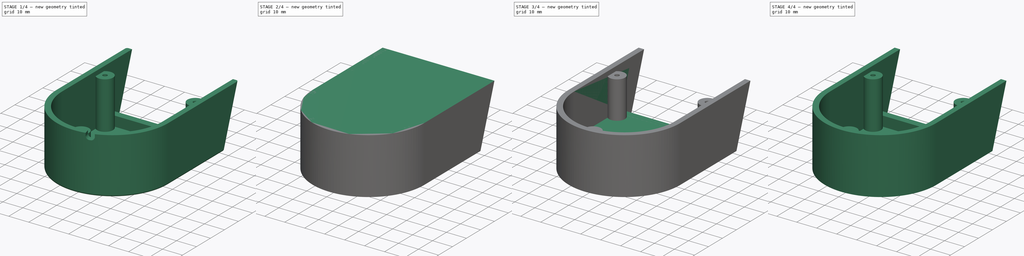
[diagram: build sequence overview — one tinted view per stage of 4, left to right]
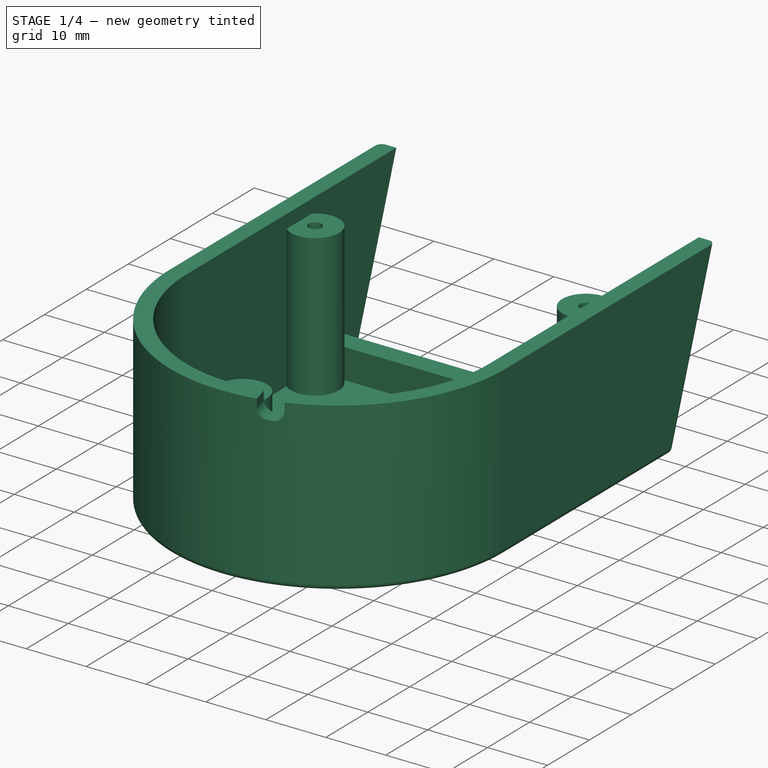
[diagram: stage 1 of 4 — iso view after this stage's code; geometry added in this stage tinted green]
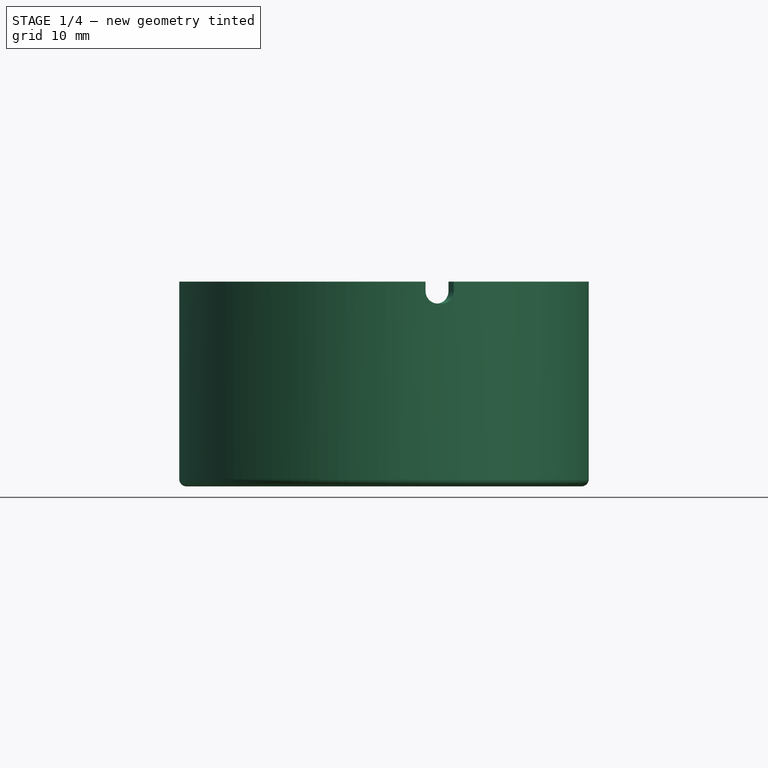
[diagram: stage 1 of 4 — front view after this stage's code; geometry added in this stage tinted green]
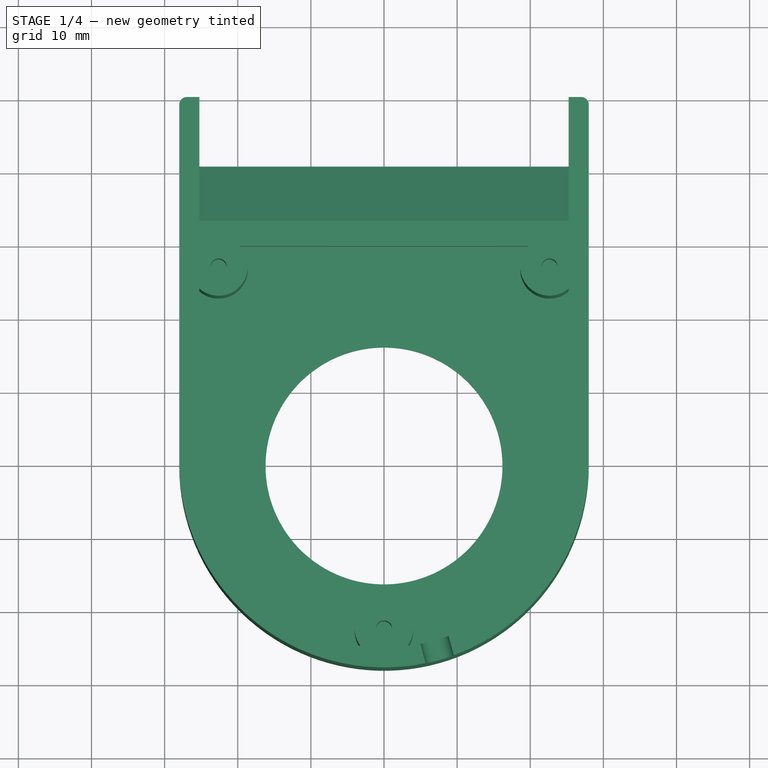
[diagram: stage 1 of 4 — top view after this stage's code; geometry added in this stage tinted green]
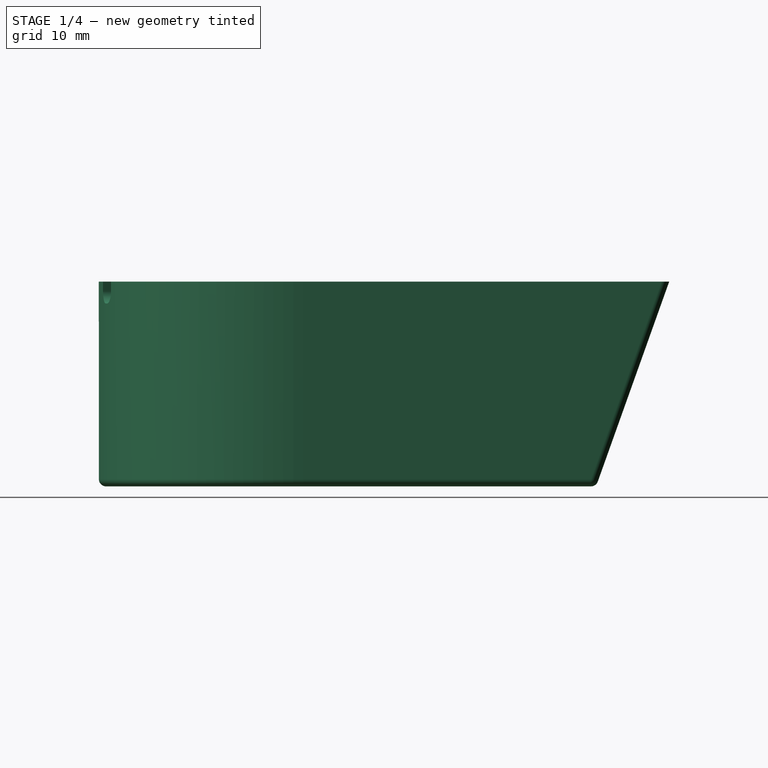
[diagram: stage 1 of 4 — right view after this stage's code; geometry added in this stage tinted green]
FCSTD DOCUMENT  (FreeCAD 0.16R6704 (Git))
Label: case-upper
License: All rights reserved
LicenseURL: http://en.wikipedia.org/wiki/All_rights_reserved
objects: Sketcher::SketchObject×9, PartDesign::Pocket×7, PartDesign::Pad×2, PartDesign::Fillet×2, Part::Feature×1
note: 30 computed .brp shape members not serialized (recipe doc carries the construction recipe); baked Part::Feature solids carry a one-line shape summary decoded from their .brp

FEATURE [Part::Feature] Pocket005001  label="Pocket006"
  shape: bbox 56 x 78 x 28 mm, 31 faces (baked)
FEATURE [Sketcher::SketchObject] Sketch010  label="Wire"
  Placement = pos=(0,0,28) rot=(0,0,1;0rad)
  Support = -> Pocket005001 [Face5]
  sketch-geometry (4):
    g0: LineSegment StartX=9.91662 StartY=-27.7603 StartZ=0 EndX=8.3637 EndY=-21.9647 EndZ=0
    g1: LineSegment StartX=4.5 StartY=-23 StartZ=0 EndX=6.05291 EndY=-28.7956 EndZ=0
    g2: LineSegment StartX=6.05291 StartY=-28.7956 StartZ=0 EndX=9.91662 EndY=-27.7603 EndZ=0
    g3: LineSegment StartX=8.3637 StartY=-21.9647 StartZ=0 EndX=4.5 EndY=-23 EndZ=0
  constraints (12):
    c: Coincident(g1,g2)
    c: Coincident(g2,g0)
    c: Parallel(g0,g1)
    c: Perpendicular(g0,g2)
    c: Distance(g2) = 4
    c: DistanceX(g1) = 4.5
    c: DistanceY(g1) = -23
    c: Coincident(g3,g0)
    c: Coincident(g3,g1)
    c: Parallel(g2,g3)
    c: Angle(g1) = -1.309
    c: Distance(g0) = 6
FEATURE [PartDesign::Pocket] Pocket005002
  Length = 3
  Sketch = -> Sketch010
  Type = 0
FEATURE [PartDesign::Fillet] Fillet001
  Base = -> Pocket005002 [Edge20,Edge22]
  Radius = 1.7
FEATURE [PartDesign::Fillet] Fillet
  Base = -> Fillet001 [Edge31,Edge27,Edge28,Edge26,Edge7,Edge23,Edge22]
  Radius = 1
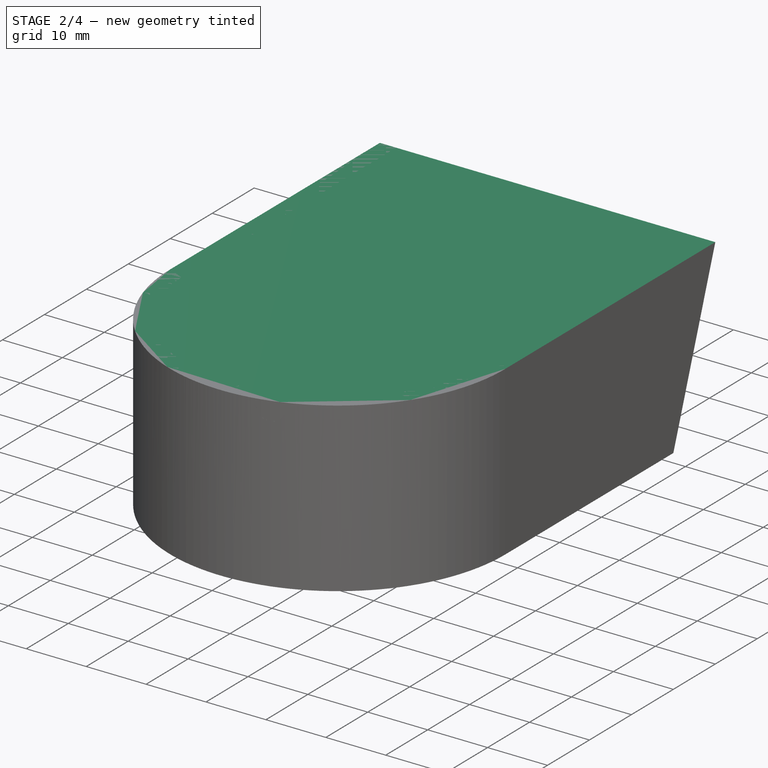
[diagram: stage 2 of 4 — iso view after this stage's code; geometry added in this stage tinted green]
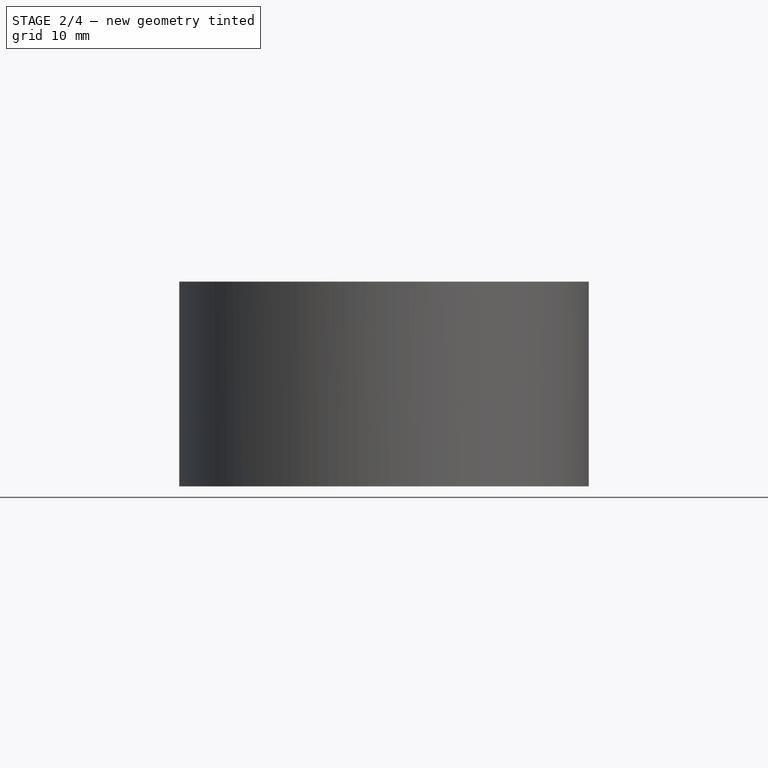
[diagram: stage 2 of 4 — front view after this stage's code; geometry added in this stage tinted green]
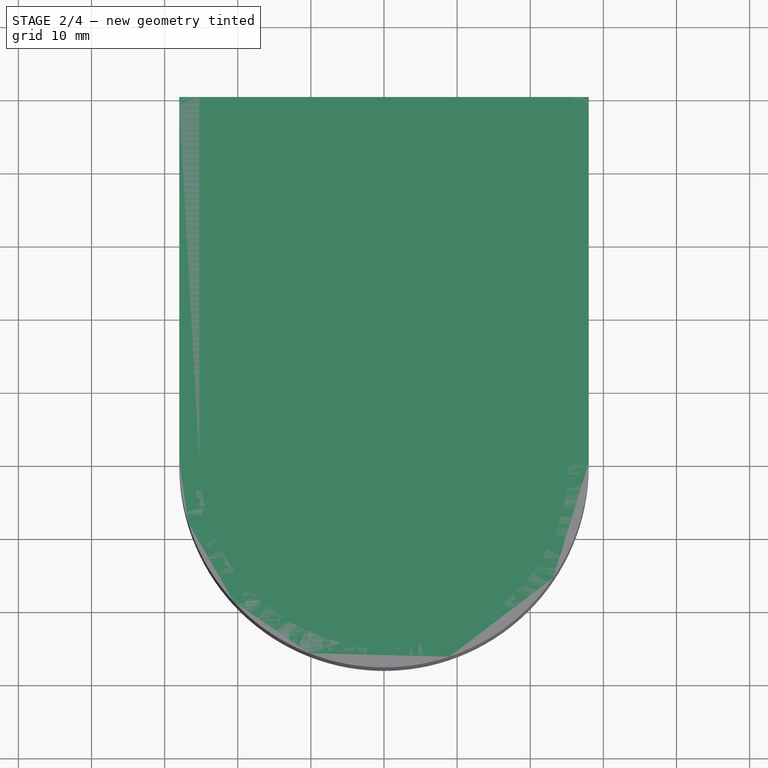
[diagram: stage 2 of 4 — top view after this stage's code; geometry added in this stage tinted green]
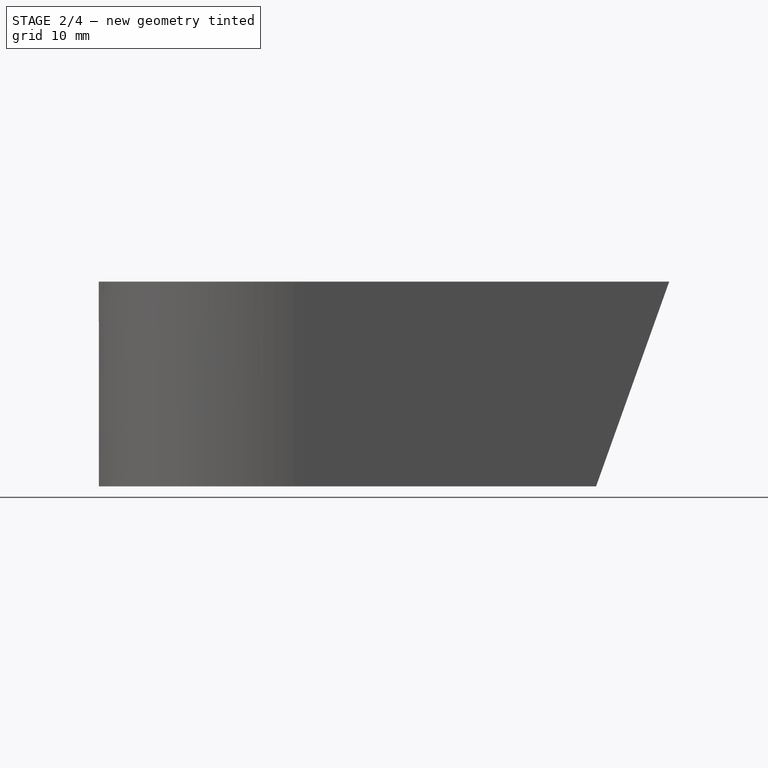
[diagram: stage 2 of 4 — right view after this stage's code; geometry added in this stage tinted green]
FEATURE [Sketcher::SketchObject] Sketch
  sketch-geometry (4):
    g0: ArcOfCircle CenterX=0 CenterY=0 CenterZ=0 NormalX=0 NormalY=0 NormalZ=1 Radius=28 StartAngle=3.14159 EndAngle=6.28319
    g1: LineSegment StartX=-28 StartY=0 StartZ=0 EndX=-28 EndY=50 EndZ=0
    g2: LineSegment StartX=-28 StartY=50 StartZ=0 EndX=28 EndY=50 EndZ=0
    g3: LineSegment StartX=28 StartY=50 StartZ=0 EndX=28 EndY=0 EndZ=0
  constraints (11):
    c: Coincident(g0,g-1)
    c: PointOnObject(g0,g-1)
    c: PointOnObject(g0,g-1)
    c: Tangent(g0,g1) = 1.5708
    c: Coincident(g1,g2)
    c: Horizontal(g2)
    c: Coincident(g2,g3)
    c: Coincident(g3,g0)
    c: Vertical(g3)
    c: DistanceY(g1,g1) = 50
    c: DistanceX(g2,g2) = 56
FEATURE [PartDesign::Pad] Pad
  Length = 28
  Length2 = 100
  Sketch = -> Sketch
  Type = 0
FEATURE [Sketcher::SketchObject] Sketch001  label="Hollow"
  ExternalGeometry = -> [Pad]
  Placement = pos=(28,0,0) rot=(0.57735,0.57735,0.57735;2.0944rad)
  Support = -> Pad [Face2]
  sketch-geometry (3):
    g0: LineSegment StartX=50 StartY=28 StartZ=0 EndX=50 EndY=0 EndZ=0
    g1: LineSegment StartX=40 StartY=0 StartZ=0 EndX=50 EndY=28 EndZ=0
    g2: LineSegment StartX=40 StartY=0 StartZ=0 EndX=50 EndY=0 EndZ=0
  constraints (8):
    c: DistanceX(g1) = 40
    c: Coincident(g0,g1)
    c: Vertical(g0)
    c: Coincident(g0,g-3)
    c: Coincident(g2,g1)
    c: Coincident(g2,g0)
    c: Horizontal(g2)
    c: PointOnObject(g1,g-1)
FEATURE [PartDesign::Pocket] Pocket
  Length = 5
  Sketch = -> Sketch001
  Type = 1
FEATURE [Sketcher::SketchObject] Sketch004  label="7Digit"
  ExternalGeometry = -> [Pocket]
  Placement = pos=(0,35.4751,-12.6697) rot=(0,0.817416,0.576048;3.14159rad)
  Support = -> Pocket [Face6]
  sketch-geometry (4):
    g0: LineSegment StartX=-25.25 StartY=35.4535 StartZ=0 EndX=25.25 EndY=35.4535 EndZ=0
    g1: LineSegment StartX=25.25 StartY=35.4535 StartZ=0 EndX=25.25 EndY=16.2035 EndZ=0
    g2: LineSegment StartX=25.25 StartY=16.2035 StartZ=0 EndX=-25.25 EndY=16.2035 EndZ=0
    g3: LineSegment StartX=-25.25 StartY=16.2035 StartZ=0 EndX=-25.25 EndY=35.4535 EndZ=0
  constraints (12):
    c: Coincident(g0,g1)
    c: Coincident(g1,g2)
    c: Coincident(g2,g3)
    c: Coincident(g3,g0)
    c: Horizontal(g0)
    c: Horizontal(g2)
    c: Vertical(g1)
    c: Vertical(g3)
    c: DistanceX(g0,g0) = 50.5
    c: DistanceY(g1,g1) = 19.25
    c: Symmetric(g2,g1,g-2)
    c: DistanceY(g-4,g2) = 2.75
FEATURE [PartDesign::Pocket] Pocket001
  Length = 8.5
  Sketch = -> Sketch004
  Type = 0
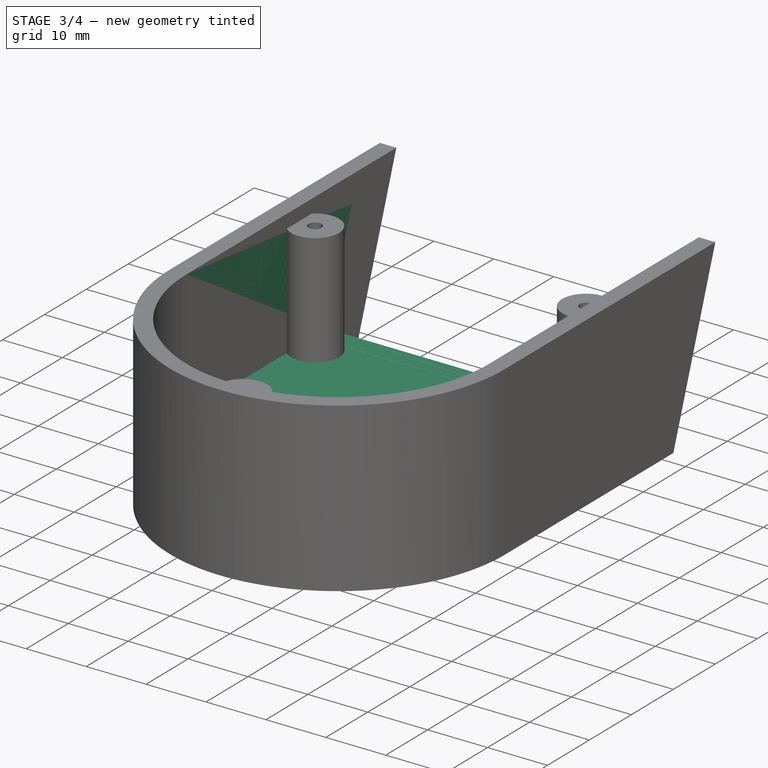
[diagram: stage 3 of 4 — iso view after this stage's code; geometry added in this stage tinted green]
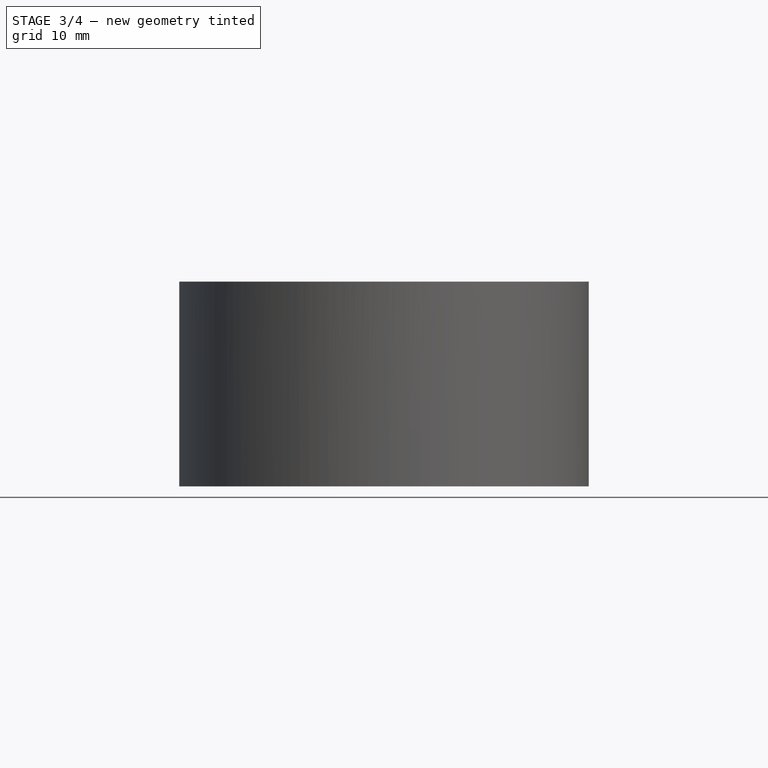
[diagram: stage 3 of 4 — front view after this stage's code; geometry added in this stage tinted green]
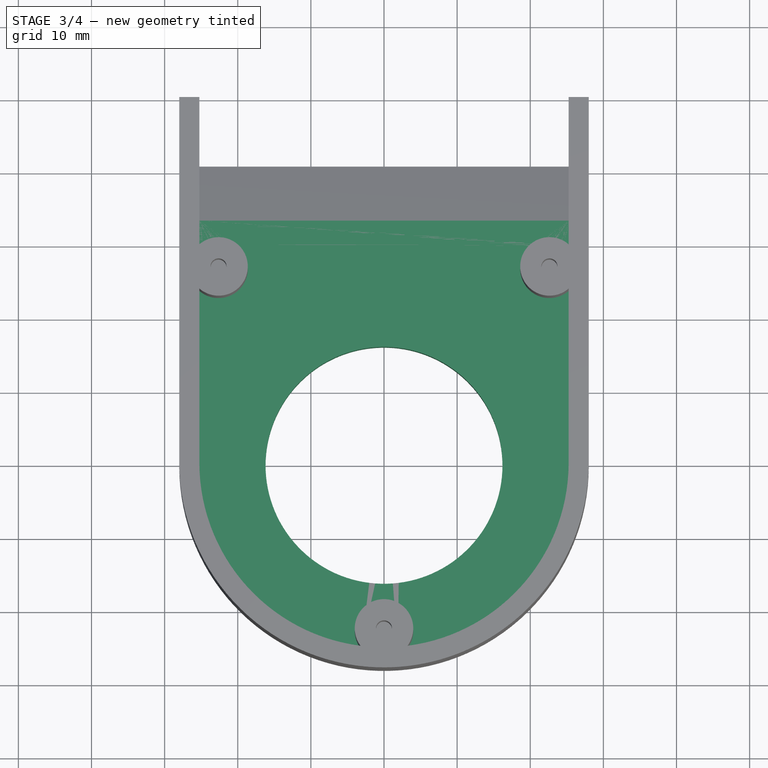
[diagram: stage 3 of 4 — top view after this stage's code; geometry added in this stage tinted green]
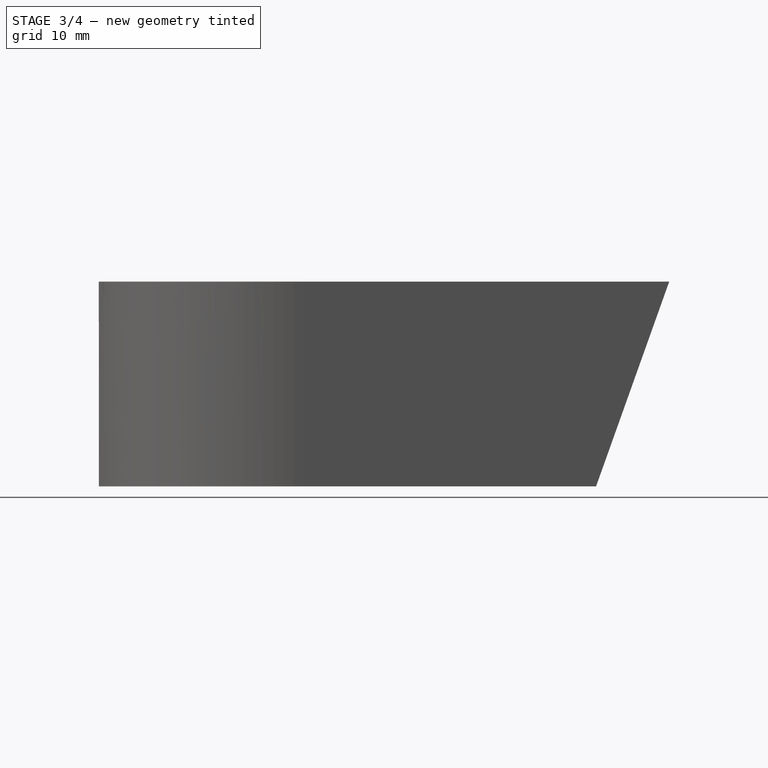
[diagram: stage 3 of 4 — right view after this stage's code; geometry added in this stage tinted green]
FEATURE [Sketcher::SketchObject] Sketch003  label="Hollow1"
  Placement = pos=(0,0,28) rot=(0,0,1;0rad)
  Support = -> Pocket001 [Face5]
  sketch-geometry (4):
    g0: ArcOfCircle CenterX=0 CenterY=0 CenterZ=0 NormalX=0 NormalY=0 NormalZ=1 Radius=25.25 StartAngle=3.14159 EndAngle=6.28319
    g1: LineSegment StartX=-25.25 StartY=0 StartZ=0 EndX=-25.25 EndY=62.2744 EndZ=0
    g2: LineSegment StartX=-25.25 StartY=62.2744 StartZ=0 EndX=25.25 EndY=62.2744 EndZ=0
    g3: LineSegment StartX=25.25 StartY=62.2744 StartZ=0 EndX=25.25 EndY=0 EndZ=0
  constraints (10):
    c: Coincident(g0,g-1)
    c: PointOnObject(g0,g-1)
    c: PointOnObject(g0,g-1)
    c: Tangent(g0,g1) = 1.5708
    c: Coincident(g1,g2)
    c: Horizontal(g2)
    c: Coincident(g2,g3)
    c: Coincident(g3,g0)
    c: Vertical(g3)
    c: DistanceX(g0) = 25.25
FEATURE [PartDesign::Pocket] Pocket002
  Length = 21
  Sketch = -> Sketch003
  Type = 0
FEATURE [Sketcher::SketchObject] Sketch006
  Placement = pos=(0,0,0) rot=(1,0,0;3.14159rad)
  Support = -> Pocket002 [Face4]
  sketch-geometry (1):
    g0: Circle CenterX=0 CenterY=0 CenterZ=0 NormalX=0 NormalY=0 NormalZ=1 Radius=16.2
  constraints (2):
    c: Coincident(g0,g-1)
    c: Radius(g0) = 16.2
FEATURE [PartDesign::Pocket] Pocket003
  Length = 5
  Sketch = -> Sketch006
  Type = 1
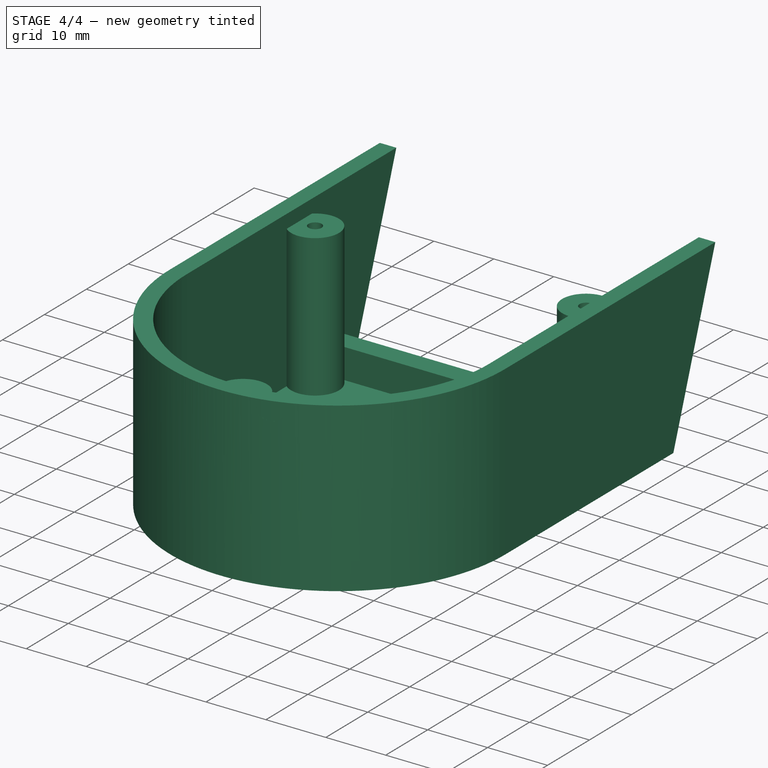
[diagram: stage 4 of 4 — iso view after this stage's code; geometry added in this stage tinted green]
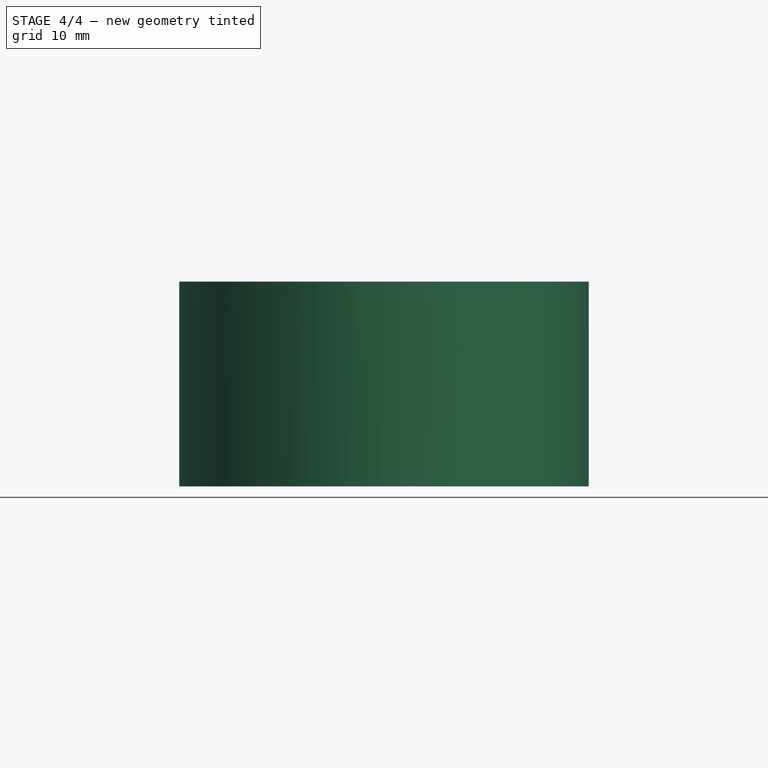
[diagram: stage 4 of 4 — front view after this stage's code; geometry added in this stage tinted green]
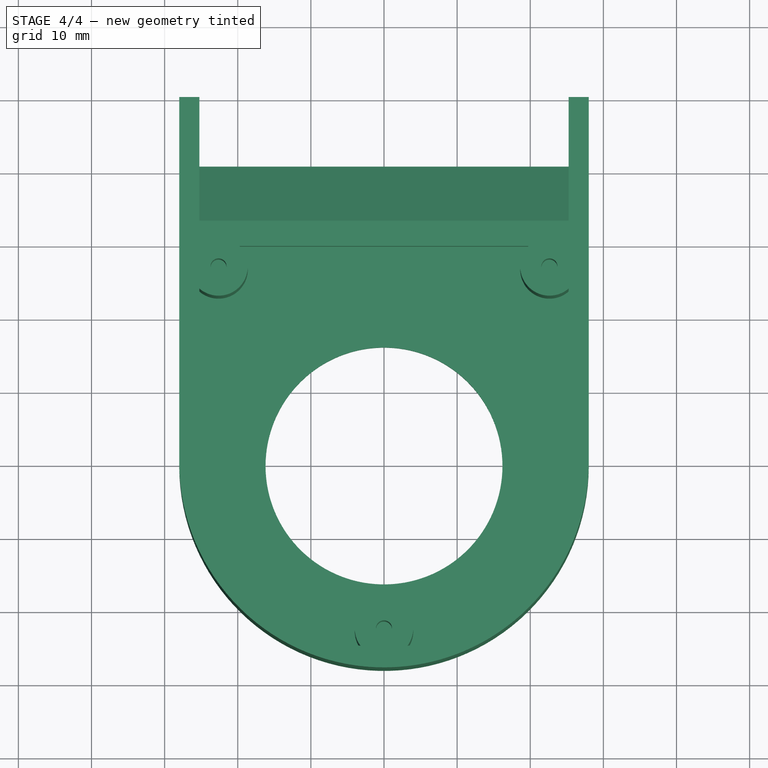
[diagram: stage 4 of 4 — top view after this stage's code; geometry added in this stage tinted green]
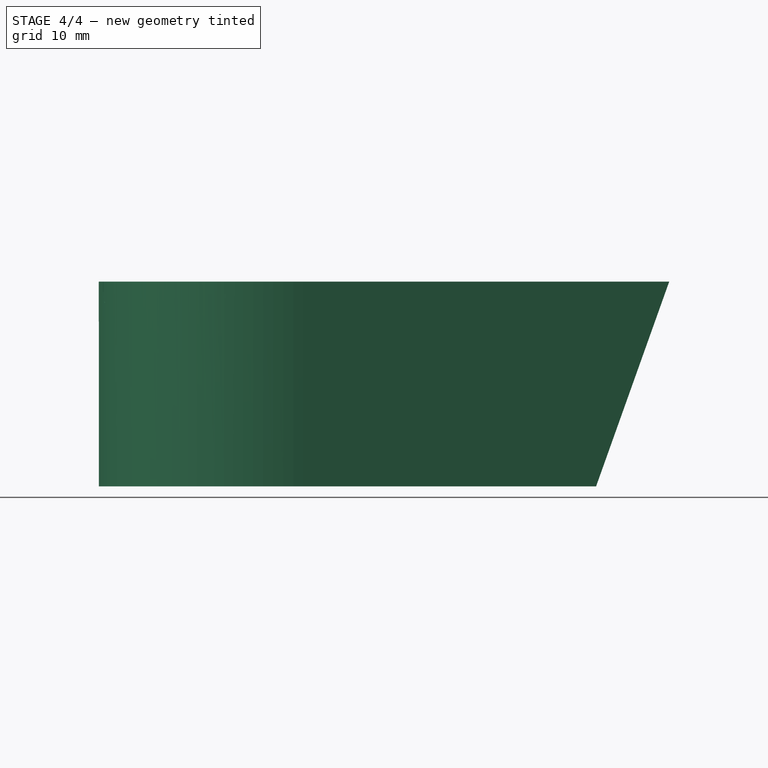
[diagram: stage 4 of 4 — right view after this stage's code; geometry added in this stage tinted green]
FEATURE [Sketcher::SketchObject] Sketch007  label="Hollow002"
  Placement = pos=(0,0,7) rot=(0,0,1;0rad)
  Support = -> Pocket003 [Face16]
  sketch-geometry (4):
    g0: ArcOfCircle CenterX=0 CenterY=0 CenterZ=0 NormalX=0 NormalY=0 NormalZ=1 Radius=25.25 StartAngle=3.14159 EndAngle=6.28319
    g1: LineSegment StartX=-25.25 StartY=0 StartZ=0 EndX=-25.25 EndY=30 EndZ=0
    g2: LineSegment StartX=-25.25 StartY=30 StartZ=0 EndX=25.25 EndY=30 EndZ=0
    g3: LineSegment StartX=25.25 StartY=30 StartZ=0 EndX=25.25 EndY=0 EndZ=0
  constraints (11):
    c: Coincident(g0,g-1)
    c: PointOnObject(g0,g-1)
    c: PointOnObject(g0,g-1)
    c: Tangent(g0,g1) = 1.5708
    c: Coincident(g1,g2)
    c: Horizontal(g2)
    c: Coincident(g2,g3)
    c: Coincident(g3,g0)
    c: Vertical(g3)
    c: DistanceX(g0) = 25.25
    c: DistanceY(g2) = 30
FEATURE [PartDesign::Pocket] Pocket004
  Length = 5
  Sketch = -> Sketch007
  Type = 0
FEATURE [Sketcher::SketchObject] Sketch008
  Placement = pos=(0,0,2) rot=(0,0,1;0rad)
  Support = -> Pocket004 [Face16]
  sketch-geometry (4):
    g0: Circle CenterX=-22.625 CenterY=26.8775 CenterZ=0 NormalX=0 NormalY=0 NormalZ=1 Radius=4
    g1: Circle CenterX=22.625 CenterY=26.8775 CenterZ=0 NormalX=0 NormalY=0 NormalZ=1 Radius=4
    g2: Circle CenterX=0 CenterY=-22.625 CenterZ=0 NormalX=0 NormalY=0 NormalZ=1 Radius=4
    g3: LineSegment [constr] StartX=-22.625 StartY=26.8775 StartZ=0 EndX=22.625 EndY=26.8775 EndZ=0
  constraints (11):
    c: PointOnObject(g2,g-2)
    c: Radius(g2) = 4
    c: Equal(g2,g1)
    c: Equal(g2,g0)
    c: Coincident(g3,g0)
    c: Horizontal(g3)
    c: Coincident(g1,g3)
    c: DistanceY(g0) = 26.8775
    c: DistanceX(g0) = -22.625
    c: DistanceX(g1) = 22.625
    c: DistanceY(g2) = -22.625
FEATURE [PartDesign::Pad] Pad001
  Length = 23.75
  Length2 = 100
  Sketch = -> Sketch008
  Type = 0
FEATURE [Sketcher::SketchObject] Sketch009
  Placement = pos=(0,0,25.75) rot=(0,0,1;0rad)
  Support = -> Pad001 [Face29]
  sketch-geometry (4):
    g0: Circle CenterX=-22.625 CenterY=26.8775 CenterZ=0 NormalX=0 NormalY=0 NormalZ=1 Radius=1.1
    g1: Circle CenterX=22.625 CenterY=26.8775 CenterZ=0 NormalX=0 NormalY=0 NormalZ=1 Radius=1.1
    g2: Circle CenterX=0 CenterY=-22.625 CenterZ=0 NormalX=0 NormalY=0 NormalZ=1 Radius=1.1
    g3: LineSegment [constr] StartX=-22.625 StartY=26.8775 StartZ=0 EndX=22.625 EndY=26.8775 EndZ=0
  constraints (11):
    c: PointOnObject(g2,g-2)
    c: Radius(g0) = 1.1
    c: Equal(g0,g1)
    c: Equal(g0,g2)
    c: Coincident(g3,g0)
    c: Coincident(g3,g1)
    c: Horizontal(g3)
    c: DistanceY(g0) = 26.8775
    c: DistanceX(g0) = -22.625
    c: DistanceX(g1) = 22.625
    c: DistanceY(g2) = -22.625
FEATURE [PartDesign::Pocket] Pocket005
  Length = 10
  Sketch = -> Sketch009
  Type = 0
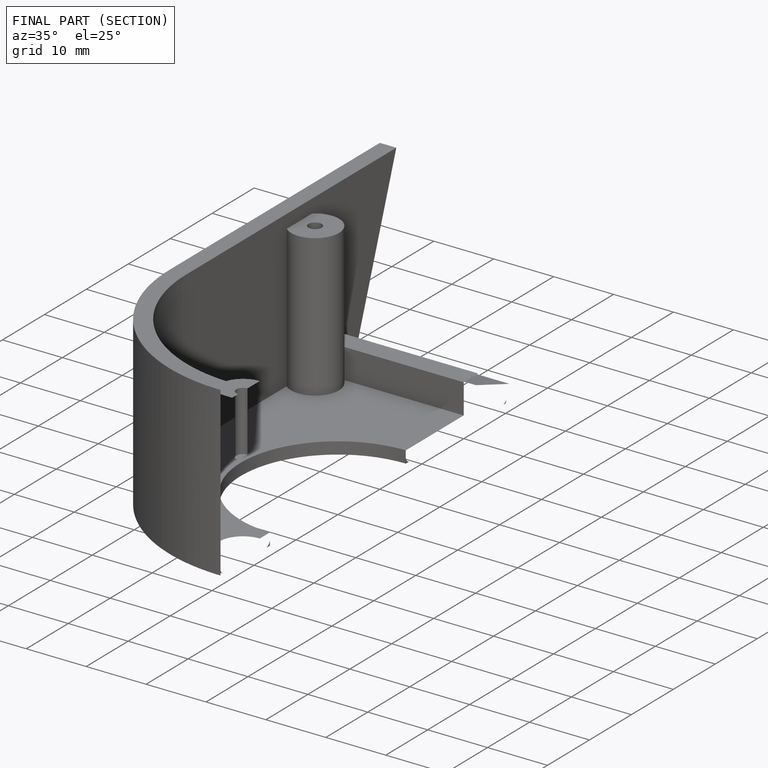
[diagram: finished part — half-section view (interior)]
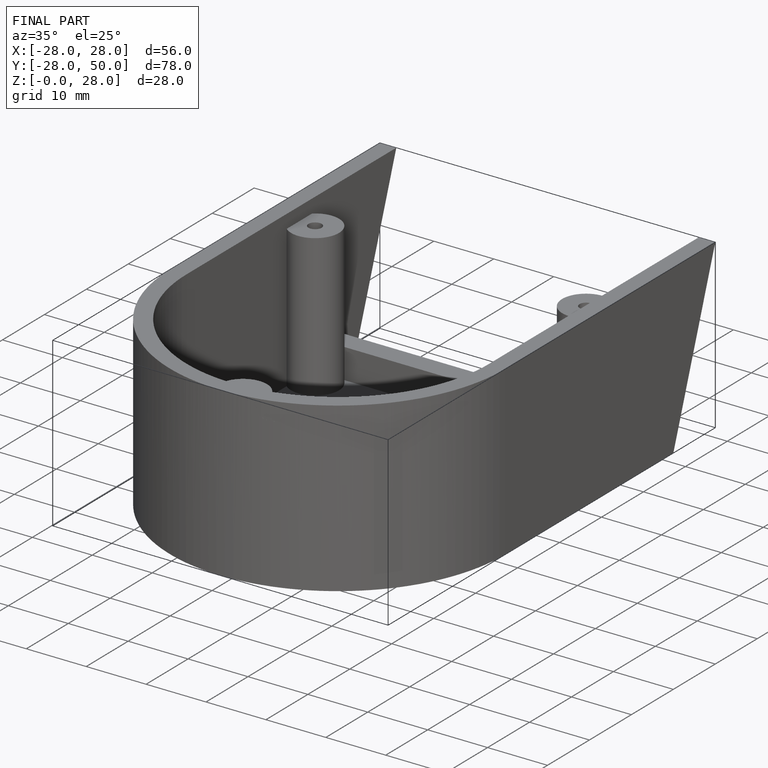
[diagram: finished part — iso view with bounding-box wireframe]
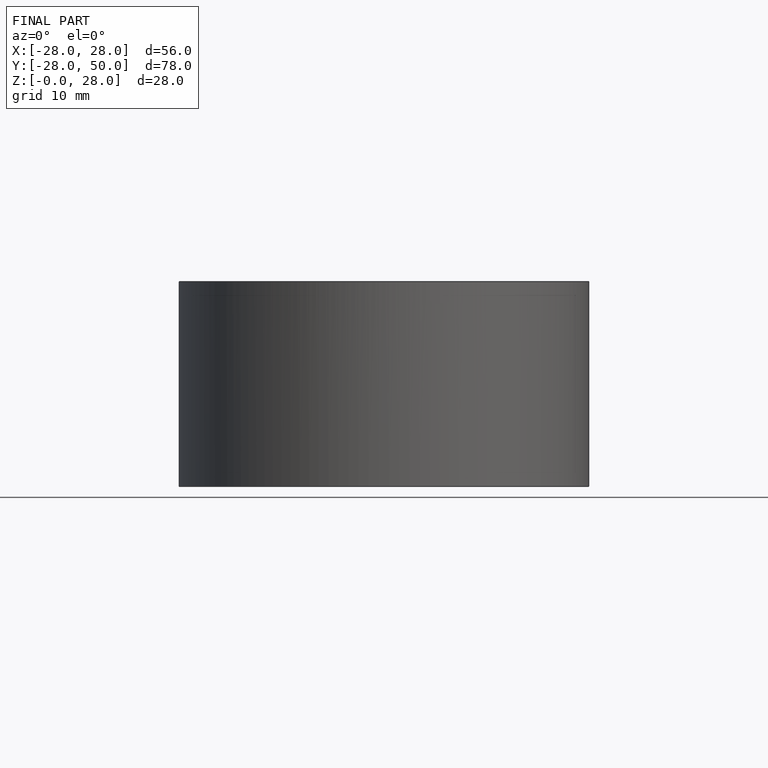
[diagram: finished part — front view with bounding-box wireframe]
